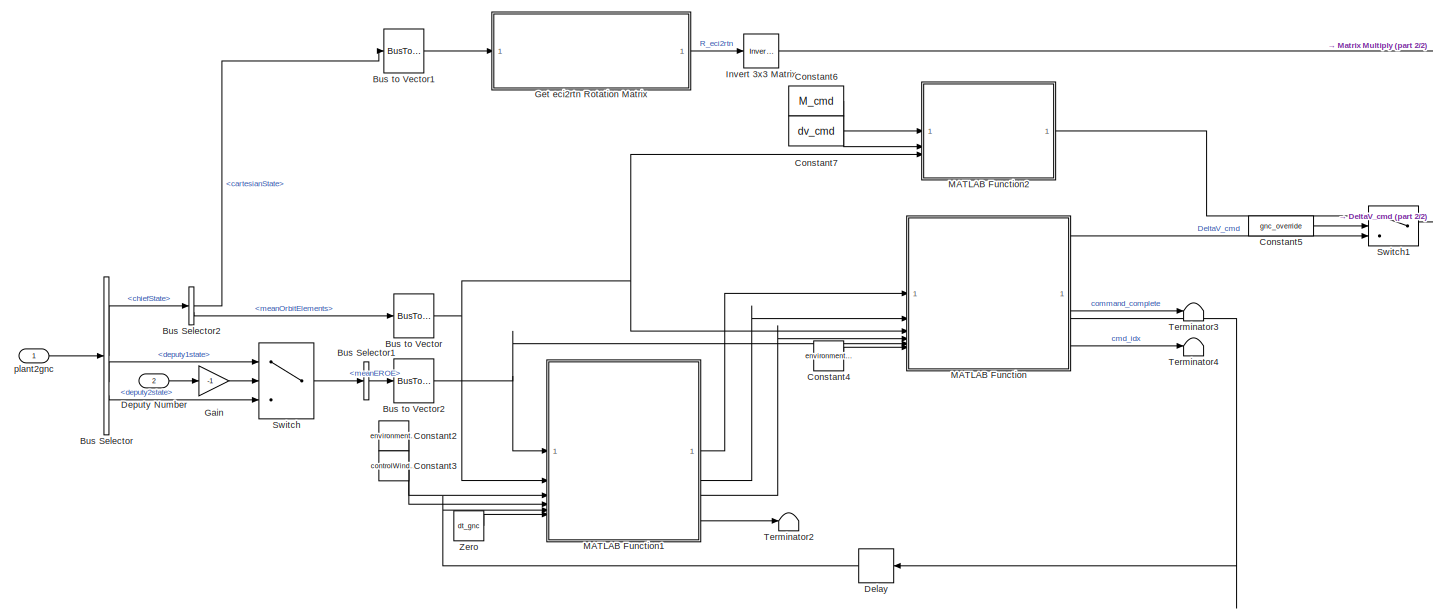
[diagram: root canvas - part 1/2, most of the canvas]
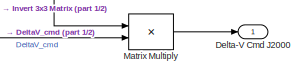
[diagram: root canvas - part 2/2, middle right region]
MODEL slx_9069a9d08414
KIND model
CONFIG AbsTol = auto
CONFIG EnableMultiTasking = off
CONFIG FixedStep = dt_gnc
CONFIG MaxStep = auto
CONFIG MinStep = auto
CONFIG RelTol = 1e-3
CONFIG SampleTimeConstraint = Unconstrained
CONFIG SolverName = ode4
CONFIG StartTime = 0.0
CONFIG StopTime = 10.0
BLOCK [BusSelector] Bus Selector
  OutputSignals = chiefState,deputy1state,deputy2state
BLOCK [BusSelector] Bus Selector1
  OutputSignals = meanEROE
BLOCK [BusSelector] Bus Selector2
  OutputSignals = cartesianState,meanOrbitElements
BLOCK [BusToVector] Bus to Vector
BLOCK [BusToVector] Bus to Vector1
BLOCK [BusToVector] Bus to Vector2
BLOCK [Constant] Constant2
  Value = environment.marsProperties.gravitationalParameter_m3_s2
BLOCK [Constant] Constant3
  OutDataTypeStr = Bus: controlWindowsBus
  Value = controlWindows
BLOCK [Constant] Constant4
  Value = environment.marsProperties.gravitationalParameter_m3_s2
BLOCK [Constant] Constant5
  Value = gnc_override
BLOCK [Constant] Constant6
  Value = M_cmd
BLOCK [Constant] Constant7
  Value = dv_cmd
BLOCK [Delay] Delay
  DelayLength = 1
  InitialCondition = false
  InputPortMap = u0
BLOCK [Outport] Delta-V Cmd J2000
BLOCK [Inport] Deputy Number
  Port = 2
BLOCK [Gain] Gain
  Gain = -1
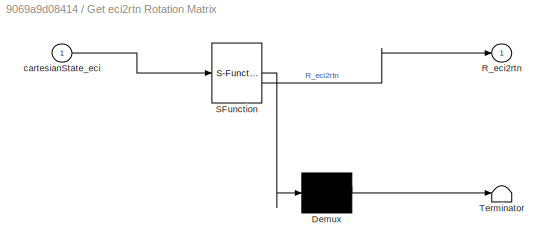
BLOCK [SubSystem] Get eci2rtn Rotation Matrix
  ErrorFcn = Stateflow.Translate.translate
  LibrarySourceBlock = simulink/User-Defined\nFunctions/MATLAB Function
  PermitHierarchicalResolution = ExplicitOnly
  SFBlockType = MATLAB Function
  TreatAsAtomicUnit = on
BLOCK [Demux] Get eci2rtn Rotation Matrix/ Demux 
  Outputs = 1
BLOCK [S-Function] Get eci2rtn Rotation Matrix/ SFunction 
  EnableBusSupport = on
  FunctionName = sf_sfun
  PortCounts = [1 2]
  SFcnIsStateOwnerBlock = off
  SFunctionDeploymentMode = off
  Tag = Stateflow S-Function 1
BLOCK [Terminator] Get eci2rtn Rotation Matrix/ Terminator 
BLOCK [Outport] Get eci2rtn Rotation Matrix/R_eci2rtn
BLOCK [Inport] Get eci2rtn Rotation Matrix/cartesianState_eci
BLOCK [Reference] Invert 3x3 Matrix  REF=aerolibutil/Invert 
3x3 Matrix
  SourceBlock = aerolibutil/Invert \n3x3 Matrix
  SourceType = Invert 3x3 Matrix
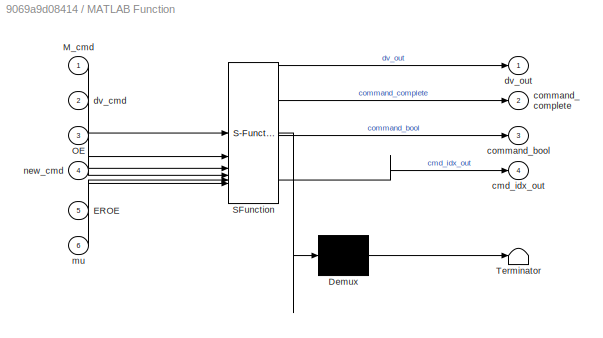
BLOCK [SubSystem] MATLAB Function
  ErrorFcn = Stateflow.Translate.translate
  LibrarySourceBlock = simulink/User-Defined\nFunctions/MATLAB Function
  PermitHierarchicalResolution = ExplicitOnly
  SFBlockType = MATLAB Function
  TreatAsAtomicUnit = on
BLOCK [Demux] MATLAB Function/ Demux 
  Outputs = 1
BLOCK [S-Function] MATLAB Function/ SFunction 
  EnableBusSupport = on
  FunctionName = sf_sfun
  PortCounts = [6 5]
  SFcnIsStateOwnerBlock = off
  SFunctionDeploymentMode = off
  Tag = Stateflow S-Function 2
BLOCK [Terminator] MATLAB Function/ Terminator 
BLOCK [Inport] MATLAB Function/EROE
  Port = 5
BLOCK [Inport] MATLAB Function/M_cmd
BLOCK [Inport] MATLAB Function/OE
  Port = 3
BLOCK [Outport] MATLAB Function/cmd_idx_out
  Port = 4
BLOCK [Outport] MATLAB Function/command_bool
  Port = 3
BLOCK [Outport] MATLAB Function/command_complete
  Port = 2
BLOCK [Inport] MATLAB Function/dv_cmd
  Port = 2
BLOCK [Outport] MATLAB Function/dv_out
BLOCK [Inport] MATLAB Function/mu
  Port = 6
BLOCK [Inport] MATLAB Function/new_cmd
  Port = 4
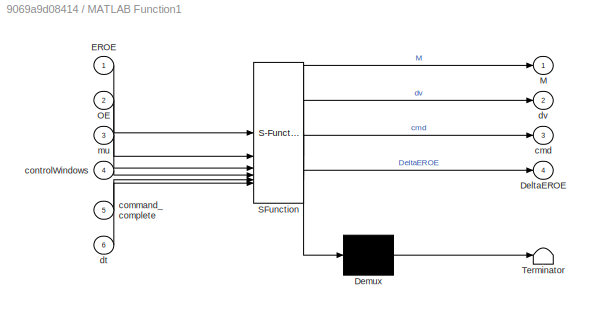
BLOCK [SubSystem] MATLAB Function1
  ErrorFcn = Stateflow.Translate.translate
  LibrarySourceBlock = simulink/User-Defined\nFunctions/MATLAB Function
  PermitHierarchicalResolution = ExplicitOnly
  SFBlockType = MATLAB Function
  TreatAsAtomicUnit = on
BLOCK [Demux] MATLAB Function1/ Demux 
  Outputs = 1
BLOCK [S-Function] MATLAB Function1/ SFunction 
  EnableBusSupport = on
  FunctionName = sf_sfun
  PortCounts = [6 5]
  SFcnIsStateOwnerBlock = off
  SFunctionDeploymentMode = off
  Tag = Stateflow S-Function 3
BLOCK [Terminator] MATLAB Function1/ Terminator 
BLOCK [Outport] MATLAB Function1/DeltaEROE
  Port = 4
BLOCK [Inport] MATLAB Function1/EROE
BLOCK [Outport] MATLAB Function1/M
BLOCK [Inport] MATLAB Function1/OE
  Port = 2
BLOCK [Outport] MATLAB Function1/cmd
  Port = 3
BLOCK [Inport] MATLAB Function1/command_complete
  Port = 5
BLOCK [Inport] MATLAB Function1/controlWindows
  Port = 4
BLOCK [Inport] MATLAB Function1/dt
  Port = 6
BLOCK [Outport] MATLAB Function1/dv
  Port = 2
BLOCK [Inport] MATLAB Function1/mu
  Port = 3
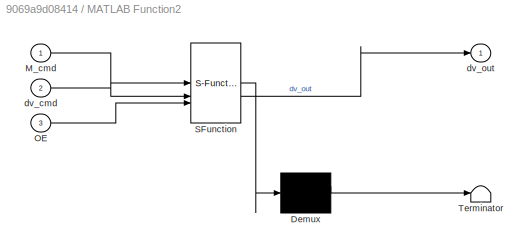
BLOCK [SubSystem] MATLAB Function2
  ErrorFcn = Stateflow.Translate.translate
  LibrarySourceBlock = simulink/User-Defined\nFunctions/MATLAB Function
  PermitHierarchicalResolution = ExplicitOnly
  SFBlockType = MATLAB Function
  TreatAsAtomicUnit = on
BLOCK [Demux] MATLAB Function2/ Demux 
  Outputs = 1
BLOCK [S-Function] MATLAB Function2/ SFunction 
  EnableBusSupport = on
  FunctionName = sf_sfun
  PortCounts = [3 2]
  SFcnIsStateOwnerBlock = off
  SFunctionDeploymentMode = off
  Tag = Stateflow S-Function 4
BLOCK [Terminator] MATLAB Function2/ Terminator 
BLOCK [Inport] MATLAB Function2/M_cmd
BLOCK [Inport] MATLAB Function2/OE
  Port = 3
BLOCK [Inport] MATLAB Function2/dv_cmd
  Port = 2
BLOCK [Outport] MATLAB Function2/dv_out
BLOCK [Product] Matrix Multiply
  Multiplication = Matrix(*)
BLOCK [Switch] Switch
  Criteria = u2 > Threshold
  InputSameDT = off
  SaturateOnIntegerOverflow = off
  Threshold = -1.5
BLOCK [Switch] Switch1
  Criteria = u2 > Threshold
  InputSameDT = off
  SaturateOnIntegerOverflow = off
  Threshold = 0.5
BLOCK [Terminator] Terminator2
BLOCK [Terminator] Terminator3
BLOCK [Terminator] Terminator4
BLOCK [Constant] Zero
  OutDataTypeStr = Inherit: Inherit via back propagation
  Value = dt_gnc
BLOCK [Inport] plant2gnc
  OutDataTypeStr = Bus: plant2gnc
LINE Bus Selector1:1 -> Bus to Vector2:1
LINE Bus Selector2:1 -> Bus to Vector1:1
LINE Bus Selector2:2 -> Bus to Vector:1
LINE Bus Selector:1 -> Bus Selector2:1
LINE Bus Selector:2 -> Switch:1
LINE Bus Selector:3 -> Switch:3
LINE Bus to Vector1:1 -> Get eci2rtn Rotation Matrix:1
NET Bus to Vector2:1 -> MATLAB Function1:1, MATLAB Function:5
NET Bus to Vector:1 -> MATLAB Function1:2, MATLAB Function2:3, MATLAB Function:3
LINE Constant2:1 -> MATLAB Function1:3
LINE Constant3:1 -> MATLAB Function1:4
LINE Constant4:1 -> MATLAB Function:6
LINE Constant5:1 -> Switch1:2
LINE Constant6:1 -> MATLAB Function2:1
LINE Constant7:1 -> MATLAB Function2:2
LINE Delay:1 -> MATLAB Function1:5
LINE Deputy Number:1 -> Gain:1
LINE Gain:1 -> Switch:2
LINE Get eci2rtn Rotation Matrix:1 -> Invert 3x3 Matrix:1
LINE Invert 3x3 Matrix:1 -> Matrix Multiply:1
LINE MATLAB Function1:1 -> MATLAB Function:1
LINE MATLAB Function1:2 -> MATLAB Function:2
LINE MATLAB Function1:3 -> MATLAB Function:4
LINE MATLAB Function1:4 -> Terminator2:1
LINE MATLAB Function2:1 -> Switch1:1
LINE MATLAB Function:1 -> Switch1:3
LINE MATLAB Function:2 -> Delay:1
LINE MATLAB Function:3 -> Terminator3:1
LINE MATLAB Function:4 -> Terminator4:1
LINE Matrix Multiply:1 -> Delta-V Cmd J2000:1
LINE Switch1:1 -> Matrix Multiply:2
LINE Switch:1 -> Bus Selector1:1
LINE Zero:1 -> MATLAB Function1:6
LINE plant2gnc:1 -> Bus Selector:1
note: NET lines group one-source signal fan-out (src -> all destinations, sorted); 1:1 wires keep LINE
CHART Get eci2rtn Rotation Matrix states=1 transitions=1
  STATE_LABEL 'eML_blk_kernel()'
  STATE_LABEL 'SCRIPT:\nfunction R_eci2rtn  = eci2rtn(cartesianState_eci)\n\n[~, R_eci2rtn] = eci2rtn(cartesianState_eci);\n\nend\n'
CHART MATLAB Function states=1 transitions=1
  STATE_LABEL 'eML_blk_kernel()'
  STATE_LABEL 'SCRIPT:\nfunction [dv_out, command_complete, command_bool, cmd_idx_out] = command(M_cmd,dv_cmd,OE, new_cmd, EROE, mu)\n[dv_out, command_complete, command_bool, cmd_idx_out] = command(M_cmd,dv_cmd,OE, new_cmd, EROE, mu);\nend'
CHART MATLAB Function1 states=1 transitions=1
  STATE_LABEL 'eML_blk_kernel()'
  STATE_LABEL 'SCRIPT:\nfunction [M,dv,cmd,DeltaEROE] = swarmMaitenance(EROE,OE,mu,controlWindows, command_complete, dt)\n[M,dv,cmd,DeltaEROE] = swarmMaitenance(EROE,OE,mu,controlWindows, command_complete, dt);\nend'
CHART MATLAB Function2 states=1 transitions=1
  STATE_LABEL 'eML_blk_kernel()'
  STATE_LABEL 'SCRIPT:\nfunction dv_out = openLoopScheduler(M_cmd,dv_cmd,OE)\ndv_out = openLoopScheduler(M_cmd,dv_cmd,OE);\nend\n'
CHART  states=0 transitions=0
CHART  states=0 transitions=0
CHART  states=0 transitions=0
CHART  states=0 transitions=0
